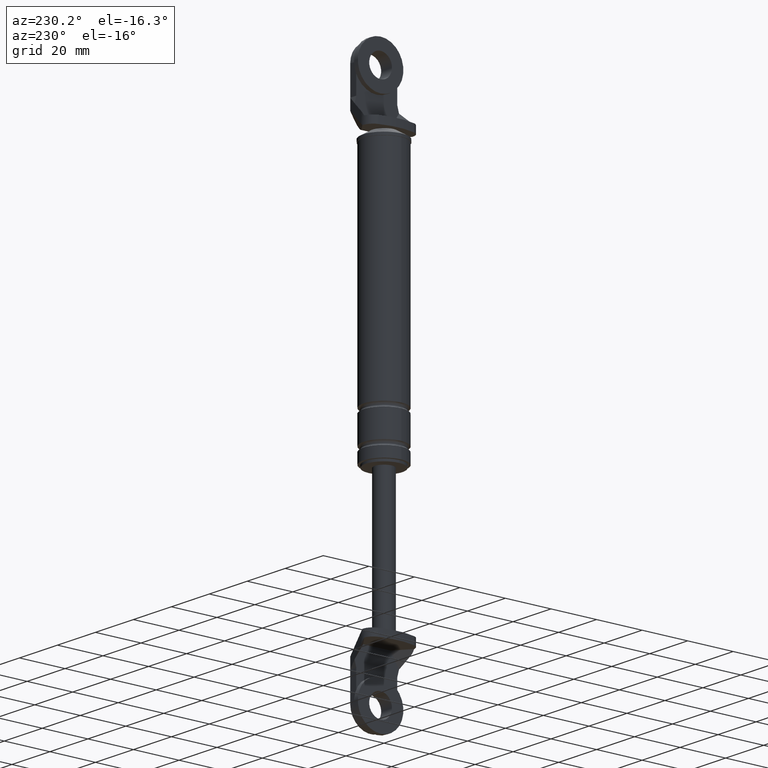
[diagram: clean part render]
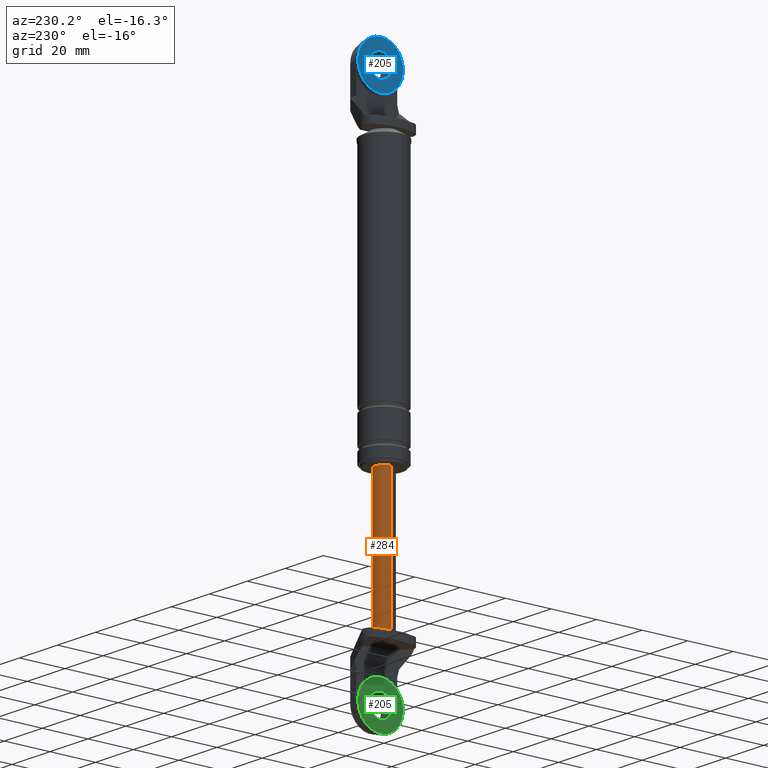
[diagram: same view with three faces highlighted in distinct colors, each labeled with its STEP entity id]
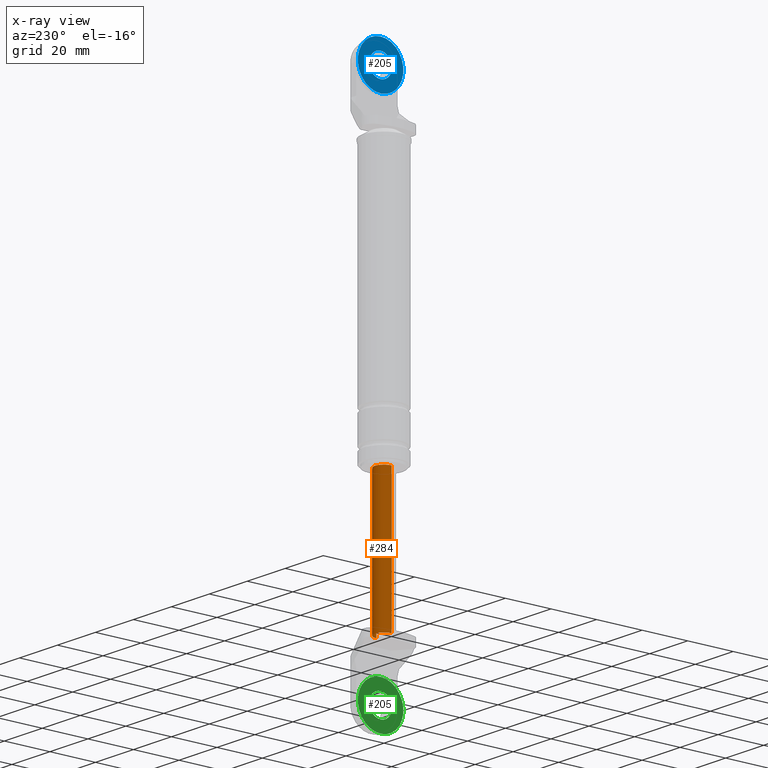
[diagram: x-ray of the same camera — body ghosted, the three highlighted faces saturated]
A machine part, auxiliary view with three faces highlighted in distinct colors.
The next image is the same camera in x-ray (body ghosted, the three faces saturated) — at least one of them is partly hidden behind the body in this view.
Their STEP definitions:

[orange] entity #284 — the highlighted cylindrical surface (edge-blend (fillet) strip) has radius 4 mm, axis along (0, 0, 1).
#284=ADVANCED_FACE('',(#1097),#1096,.T.);
#1096=CYLINDRICAL_SURFACE('',#1755,4.00000000000E+000);
#1097=FACE_OUTER_BOUND('',#1756,.T.);
#1752=CARTESIAN_POINT('',(0.00000000000E+000,3.58204186421E-014,0.00000000000E+000));
#1753=DIRECTION('',(-0.00000000000E+000,-0.00000000000E+000,1.00000000000E+000));
#1754=DIRECTION('',(1.00000000000E+000,-0.00000000000E+000,-0.00000000000E+000));
#1755=AXIS2_PLACEMENT_3D('',#1752,#1753,#1754);
#1756=EDGE_LOOP('',(#2148,#2149,#2150,#2151,#2152));
#2148=ORIENTED_EDGE('',*,*,#2350,.T.);
#2149=ORIENTED_EDGE('',*,*,#2354,.F.);
#2150=ORIENTED_EDGE('',*,*,#2338,.F.);
#2151=ORIENTED_EDGE('',*,*,#2342,.F.);
#2152=ORIENTED_EDGE('',*,*,#2355,.T.);
#2338=EDGE_CURVE('',#3206,#3556,#3557,.T.);
#2342=EDGE_CURVE('',#3575,#3206,#3582,.T.);
#2350=EDGE_CURVE('',#3627,#3626,#3634,.T.);
#2354=EDGE_CURVE('',#3556,#3626,#3658,.T.);
#2355=EDGE_CURVE('',#3575,#3627,#3664,.T.);
#3206=VERTEX_POINT('',#4192);
#3556=VERTEX_POINT('',#4400);
#3557=CIRCLE('',#4404,4.00000000000E+000);
#3575=VERTEX_POINT('',#4412);
#3582=CIRCLE('',#4420,4.00000000000E+000);
#3626=VERTEX_POINT('',#4444);
#3627=VERTEX_POINT('',#4445);
#3634=CIRCLE('',#4453,4.00000000000E+000);
#3658=(BOUNDED_CURVE() B_SPLINE_CURVE(1,(#4462,#4463),.UNSPECIFIED.,.F.,.F.) B_SPLINE_CURVE_WITH_KNOTS((2,2),(8.33333332085E-002,9.16666666222E-001),.UNSPECIFIED.) CURVE() GEOMETRIC_REPRESENTATION_ITEM() RATIONAL_B_SPLINE_CURVE((1.00000000000E+000,1.00000000000E+000)) REPRESENTATION_ITEM('') );
#3664=(BOUNDED_CURVE() B_SPLINE_CURVE(1,(#4464,#4465),.UNSPECIFIED.,.F.,.F.) B_SPLINE_CURVE_WITH_KNOTS((2,2),(8.33333333333E-002,9.16666666667E-001),.UNSPECIFIED.) CURVE() GEOMETRIC_REPRESENTATION_ITEM() RATIONAL_B_SPLINE_CURVE((7.50000000000E-001,7.50000000000E-001)) REPRESENTATION_ITEM('') );
#4192=CARTESIAN_POINT('',(2.00000000000E+000,3.46410161514E+000,-8.80000150000E+001));
#4400=CARTESIAN_POINT('',(3.99999999999E+000,-7.42202590949E-006,-8.80000150000E+001));
#4401=CARTESIAN_POINT('',(-1.38555833473E-013,0.00000000000E+000,-8.80000150000E+001));
#4402=DIRECTION('',(0.00000000000E+000,0.00000000000E+000,-1.00000000000E+000));
#4403=DIRECTION('',(5.00000000000E-001,8.66025403784E-001,0.00000000000E+000));
#4404=AXIS2_PLACEMENT_3D('',#4401,#4402,#4403);
#4412=CARTESIAN_POINT('',(-4.00000000000E+000,-4.44089209850E-016,-8.80000150000E+001));
#4417=CARTESIAN_POINT('',(-1.38555833473E-013,0.00000000000E+000,-8.80000150000E+001));
#4418=DIRECTION('',(0.00000000000E+000,0.00000000000E+000,-1.00000000000E+000));
#4419=DIRECTION('',(1.00000000000E+000,-0.00000000000E+000,-0.00000000000E+000));
#4420=AXIS2_PLACEMENT_3D('',#4417,#4418,#4419);
#4444=CARTESIAN_POINT('',(4.00000000000E+000,3.64153152077E-014,-2.90000150000E+001));
#4445=CARTESIAN_POINT('',(-4.00000000000E+000,3.58204186421E-014,-2.90000150000E+001));
#4450=CARTESIAN_POINT('',(0.00000000000E+000,3.58204186421E-014,-2.90000150000E+001));
#4451=DIRECTION('',(-0.00000000000E+000,0.00000000000E+000,-1.00000000000E+000));
#4452=DIRECTION('',(-1.00000000000E+000,-1.22460635382E-016,0.00000000000E+000));
#4453=AXIS2_PLACEMENT_3D('',#4450,#4451,#4452);
#4462=CARTESIAN_POINT('',(4.00000000000E+000,3.58204186421E-014,-8.80000150088E+001));
#4463=CARTESIAN_POINT('',(4.00000000000E+000,3.58204186421E-014,-2.90000150315E+001));
#4464=CARTESIAN_POINT('',(-4.00000000000E+000,3.58231962612E-014,-8.80000150000E+001));
#4465=CARTESIAN_POINT('',(-4.00000000000E+000,3.58231962612E-014,-2.90000150000E+001));

[blue] entity #205 — the highlighted planar face has unit normal (1, 0, 0).
#205=ADVANCED_FACE('',(#298,#299),#297,.F.);
#297=PLANE('',#1125);
#298=FACE_OUTER_BOUND('',#1126,.T.);
#299=FACE_BOUND('',#1127,.T.);
#1122=CARTESIAN_POINT('',(-6.90000460000E+001,2.07846096908E+001,2.76000000000E+002));
#1123=DIRECTION('',(1.00000000000E+000,0.00000000000E+000,0.00000000000E+000));
#1124=DIRECTION('',(0.00000000000E+000,-1.00000000000E+000,0.00000000000E+000));
#1125=AXIS2_PLACEMENT_3D('',#1122,#1123,#1124);
#1126=EDGE_LOOP('',(#1766,#1767));
#1127=EDGE_LOOP('',(#1768,#1769));
#1766=ORIENTED_EDGE('',*,*,#2162,.T.);
#1767=ORIENTED_EDGE('',*,*,#2163,.T.);
#1768=ORIENTED_EDGE('',*,*,#2164,.F.);
#1769=ORIENTED_EDGE('',*,*,#2165,.F.);
#2162=EDGE_CURVE('',#2384,#2385,#2386,.T.);
#2163=EDGE_CURVE('',#2385,#2384,#2392,.T.);
#2164=EDGE_CURVE('',#2398,#2399,#2400,.T.);
#2165=EDGE_CURVE('',#2399,#2398,#2406,.T.);
#2384=VERTEX_POINT('',#3690);
#2385=VERTEX_POINT('',#3691);
#2386=CIRCLE('',#3695,1.00000000000E+001);
#2392=CIRCLE('',#3699,1.00000000000E+001);
#2398=VERTEX_POINT('',#3700);
#2399=VERTEX_POINT('',#3701);
#2400=CIRCLE('',#3705,5.00000000000E+000);
#2406=CIRCLE('',#3709,5.00000000000E+000);
#3690=CARTESIAN_POINT('',(-6.90000460000E+001,5.68434188608E-014,2.43000000000E+002));
#3691=CARTESIAN_POINT('',(-6.90000460000E+001,5.80276567537E-014,2.63000000000E+002));
#3692=CARTESIAN_POINT('',(-6.90000460000E+001,5.68434188608E-014,2.53000000000E+002));
#3693=DIRECTION('',(-1.00000000000E+000,0.00000000000E+000,-0.00000000000E+000));
#3694=DIRECTION('',(0.00000000000E+000,-1.22460635382E-016,-1.00000000000E+000));
#3695=AXIS2_PLACEMENT_3D('',#3692,#3693,#3694);
#3696=CARTESIAN_POINT('',(-6.90000460000E+001,5.68434188608E-014,2.53000000000E+002));
#3697=DIRECTION('',(-1.00000000000E+000,0.00000000000E+000,-0.00000000000E+000));
#3698=DIRECTION('',(0.00000000000E+000,-1.22460635382E-016,-1.00000000000E+000));
#3699=AXIS2_PLACEMENT_3D('',#3696,#3697,#3698);
#3700=CARTESIAN_POINT('',(-6.90000460000E+001,5.74355378073E-014,2.58000000000E+002));
#3701=CARTESIAN_POINT('',(-6.90000460000E+001,5.68434188608E-014,2.48000000000E+002));
#3702=CARTESIAN_POINT('',(-6.90000460000E+001,5.68434188608E-014,2.53000000000E+002));
#3703=DIRECTION('',(-1.00000000000E+000,0.00000000000E+000,-0.00000000000E+000));
#3704=DIRECTION('',(0.00000000000E+000,-1.22460635382E-016,-1.00000000000E+000));
#3705=AXIS2_PLACEMENT_3D('',#3702,#3703,#3704);
#3706=CARTESIAN_POINT('',(-6.90000460000E+001,5.68434188608E-014,2.53000000000E+002));
#3707=DIRECTION('',(-1.00000000000E+000,0.00000000000E+000,-0.00000000000E+000));
#3708=DIRECTION('',(0.00000000000E+000,-1.22460635382E-016,-1.00000000000E+000));
#3709=AXIS2_PLACEMENT_3D('',#3706,#3707,#3708);

[green] entity #205 — the highlighted planar face has unit normal (1, 0, 0).
#205=ADVANCED_FACE('',(#298,#299),#297,.F.);
#297=PLANE('',#1125);
#298=FACE_OUTER_BOUND('',#1126,.T.);
#299=FACE_BOUND('',#1127,.T.);
#1122=CARTESIAN_POINT('',(-6.90000460000E+001,2.07846096908E+001,2.76000000000E+002));
#1123=DIRECTION('',(1.00000000000E+000,0.00000000000E+000,0.00000000000E+000));
#1124=DIRECTION('',(0.00000000000E+000,-1.00000000000E+000,0.00000000000E+000));
#1125=AXIS2_PLACEMENT_3D('',#1122,#1123,#1124);
#1126=EDGE_LOOP('',(#1766,#1767));
#1127=EDGE_LOOP('',(#1768,#1769));
#1766=ORIENTED_EDGE('',*,*,#2162,.T.);
#1767=ORIENTED_EDGE('',*,*,#2163,.T.);
#1768=ORIENTED_EDGE('',*,*,#2164,.F.);
#1769=ORIENTED_EDGE('',*,*,#2165,.F.);
#2162=EDGE_CURVE('',#2384,#2385,#2386,.T.);
#2163=EDGE_CURVE('',#2385,#2384,#2392,.T.);
#2164=EDGE_CURVE('',#2398,#2399,#2400,.T.);
#2165=EDGE_CURVE('',#2399,#2398,#2406,.T.);
#2384=VERTEX_POINT('',#3690);
#2385=VERTEX_POINT('',#3691);
#2386=CIRCLE('',#3695,1.00000000000E+001);
#2392=CIRCLE('',#3699,1.00000000000E+001);
#2398=VERTEX_POINT('',#3700);
#2399=VERTEX_POINT('',#3701);
#2400=CIRCLE('',#3705,5.00000000000E+000);
#2406=CIRCLE('',#3709,5.00000000000E+000);
#3690=CARTESIAN_POINT('',(-6.90000460000E+001,5.68434188608E-014,2.43000000000E+002));
#3691=CARTESIAN_POINT('',(-6.90000460000E+001,5.80276567537E-014,2.63000000000E+002));
#3692=CARTESIAN_POINT('',(-6.90000460000E+001,5.68434188608E-014,2.53000000000E+002));
#3693=DIRECTION('',(-1.00000000000E+000,0.00000000000E+000,-0.00000000000E+000));
#3694=DIRECTION('',(0.00000000000E+000,-1.22460635382E-016,-1.00000000000E+000));
#3695=AXIS2_PLACEMENT_3D('',#3692,#3693,#3694);
#3696=CARTESIAN_POINT('',(-6.90000460000E+001,5.68434188608E-014,2.53000000000E+002));
#3697=DIRECTION('',(-1.00000000000E+000,0.00000000000E+000,-0.00000000000E+000));
#3698=DIRECTION('',(0.00000000000E+000,-1.22460635382E-016,-1.00000000000E+000));
#3699=AXIS2_PLACEMENT_3D('',#3696,#3697,#3698);
#3700=CARTESIAN_POINT('',(-6.90000460000E+001,5.74355378073E-014,2.58000000000E+002));
#3701=CARTESIAN_POINT('',(-6.90000460000E+001,5.68434188608E-014,2.48000000000E+002));
#3702=CARTESIAN_POINT('',(-6.90000460000E+001,5.68434188608E-014,2.53000000000E+002));
#3703=DIRECTION('',(-1.00000000000E+000,0.00000000000E+000,-0.00000000000E+000));
#3704=DIRECTION('',(0.00000000000E+000,-1.22460635382E-016,-1.00000000000E+000));
#3705=AXIS2_PLACEMENT_3D('',#3702,#3703,#3704);
#3706=CARTESIAN_POINT('',(-6.90000460000E+001,5.68434188608E-014,2.53000000000E+002));
#3707=DIRECTION('',(-1.00000000000E+000,0.00000000000E+000,-0.00000000000E+000));
#3708=DIRECTION('',(0.00000000000E+000,-1.22460635382E-016,-1.00000000000E+000));
#3709=AXIS2_PLACEMENT_3D('',#3706,#3707,#3708);